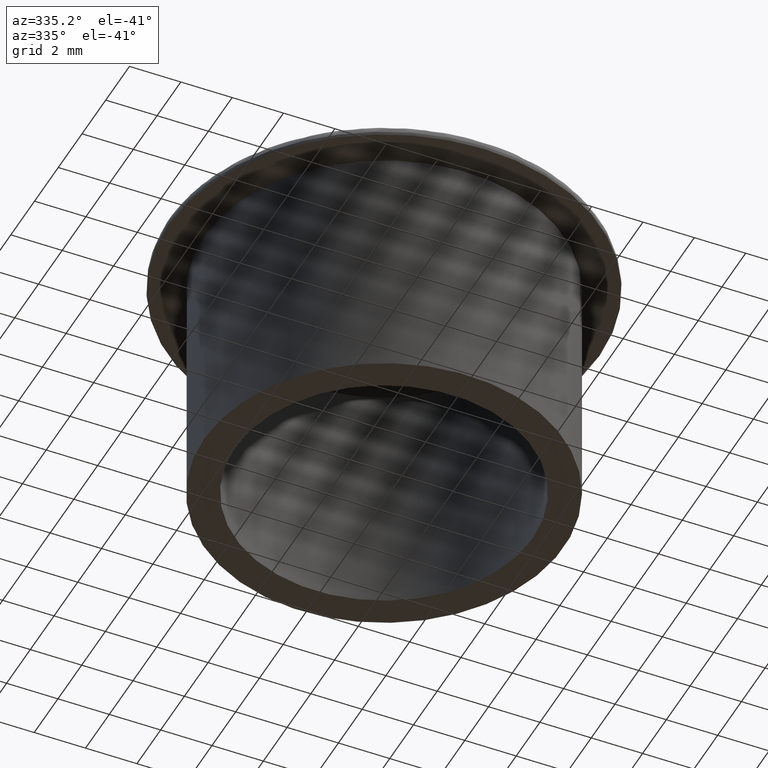
[diagram: clean part render]
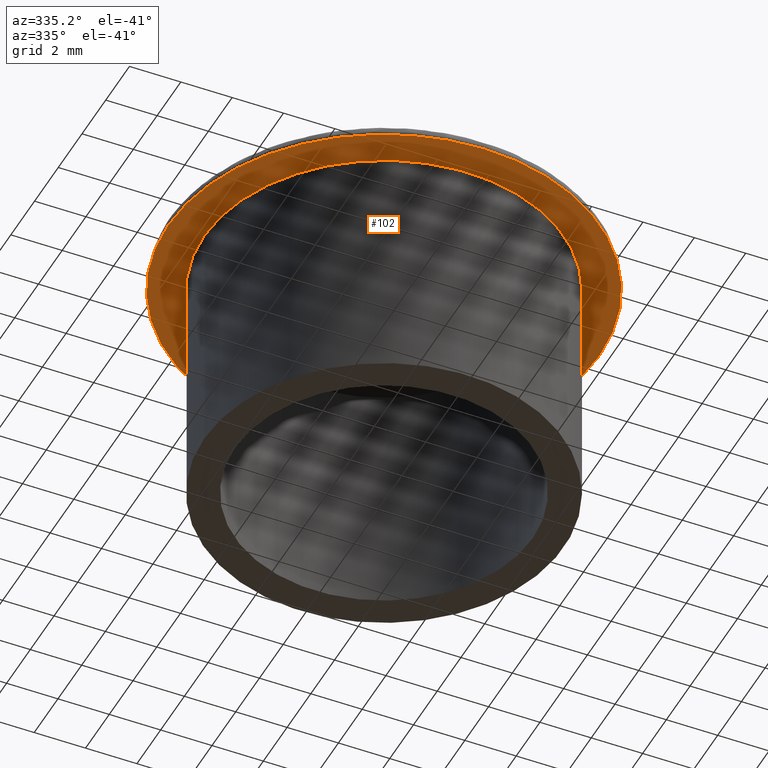
[diagram: same view with one face highlighted and labeled with its STEP entity id]
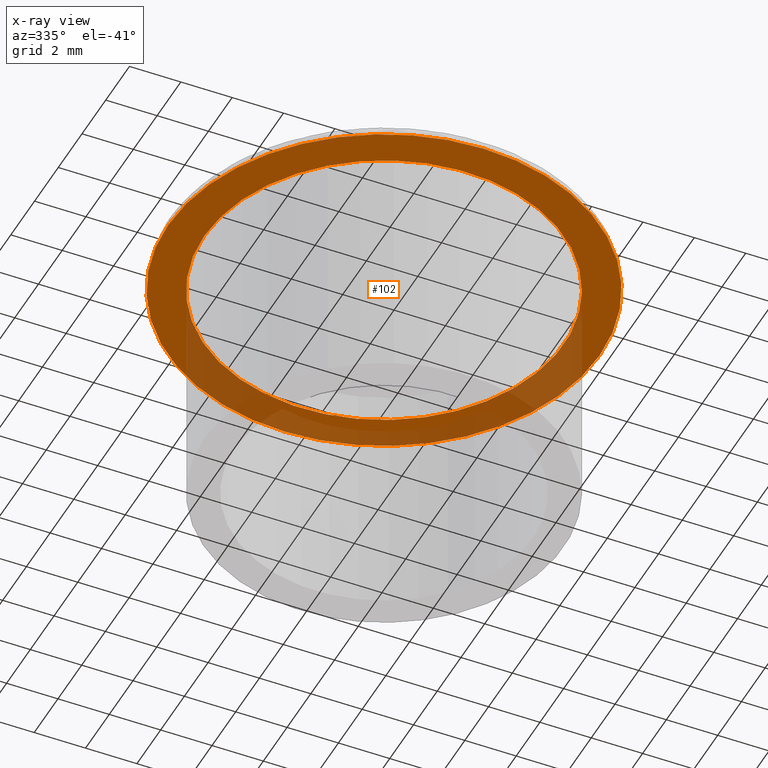
[diagram: x-ray of the same camera — body ghosted, the highlighted face saturated]
A machine part, auxiliary view. The second image highlights one B-rep face of the part: STEP entity #102.
The next image is the same camera in x-ray: the body ghosted, the highlighted face saturated — about 31% of this face is hidden behind the body in this view.
In plain terms, the highlighted planar face has unit normal (0, 0, 1).
Its self-contained STEP definition (entity closure, byte-faithful):
#20=FACE_BOUND('',#41,.T.);
#29=FACE_OUTER_BOUND('',#40,.T.);
#40=EDGE_LOOP('',(#82));
#41=EDGE_LOOP('',(#83));
#49=CIRCLE('',#115,7.);
#50=CIRCLE('',#117,8.4);
#59=VERTEX_POINT('',#172);
#60=VERTEX_POINT('',#175);
#68=EDGE_CURVE('',#59,#59,#49,.T.);
#69=EDGE_CURVE('',#60,#60,#50,.T.);
#82=ORIENTED_EDGE('',*,*,#69,.T.);
#83=ORIENTED_EDGE('',*,*,#68,.F.);
#97=PLANE('',#116);
#102=ADVANCED_FACE('',(#29,#20),#97,.F.);
#115=AXIS2_PLACEMENT_3D('',#173,#141,#142);
#116=AXIS2_PLACEMENT_3D('',#174,#143,#144);
#117=AXIS2_PLACEMENT_3D('',#176,#145,#146);
#141=DIRECTION('center_axis',(0.,0.,-1.));
#142=DIRECTION('ref_axis',(1.,0.,0.));
#143=DIRECTION('center_axis',(0.,0.,1.));
#144=DIRECTION('ref_axis',(1.,0.,0.));
#145=DIRECTION('center_axis',(0.,0.,-1.));
#146=DIRECTION('ref_axis',(1.,0.,0.));
#172=CARTESIAN_POINT('',(-7.,9.5,0.));
#173=CARTESIAN_POINT('Origin',(0.,9.5,0.));
#174=CARTESIAN_POINT('Origin',(-16.8,26.3,-1.776357E-15));
#175=CARTESIAN_POINT('',(-8.4,9.5,0.));
#176=CARTESIAN_POINT('Origin',(0.,9.5,0.));